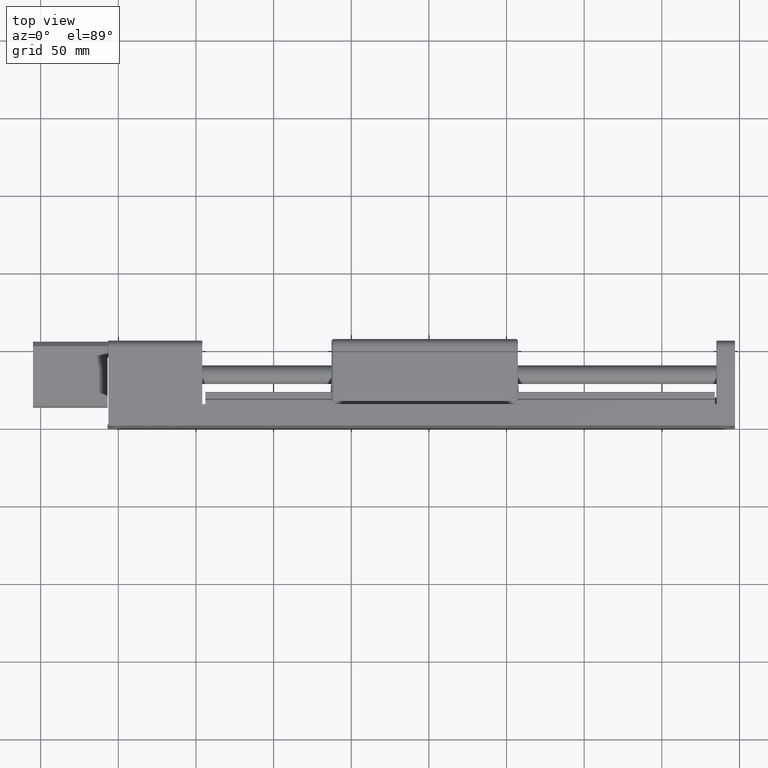
[diagram: clean part render]
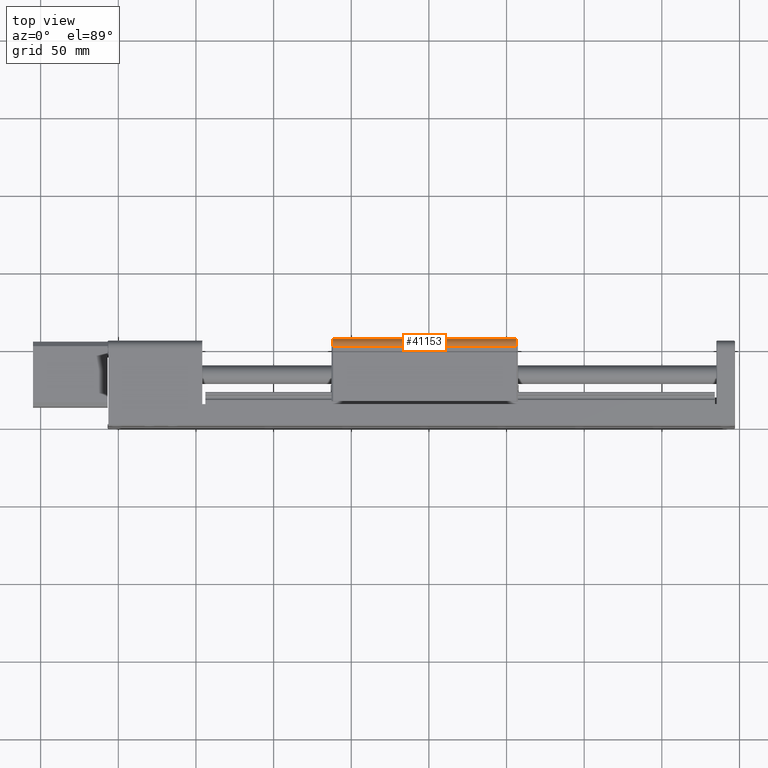
[diagram: same view with one face highlighted and labeled with its STEP entity id]
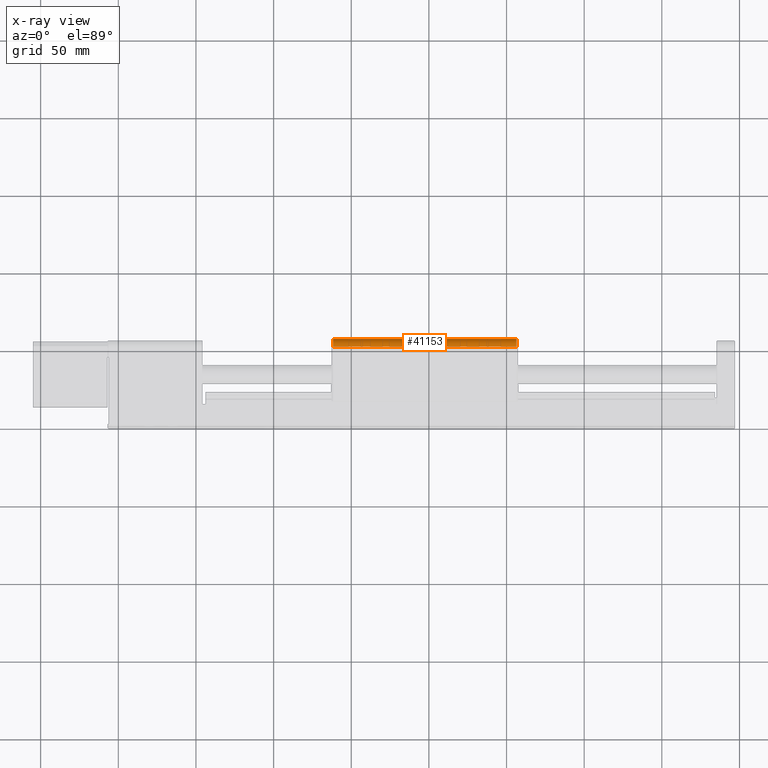
[diagram: x-ray of the same camera — body ghosted, the highlighted face saturated]
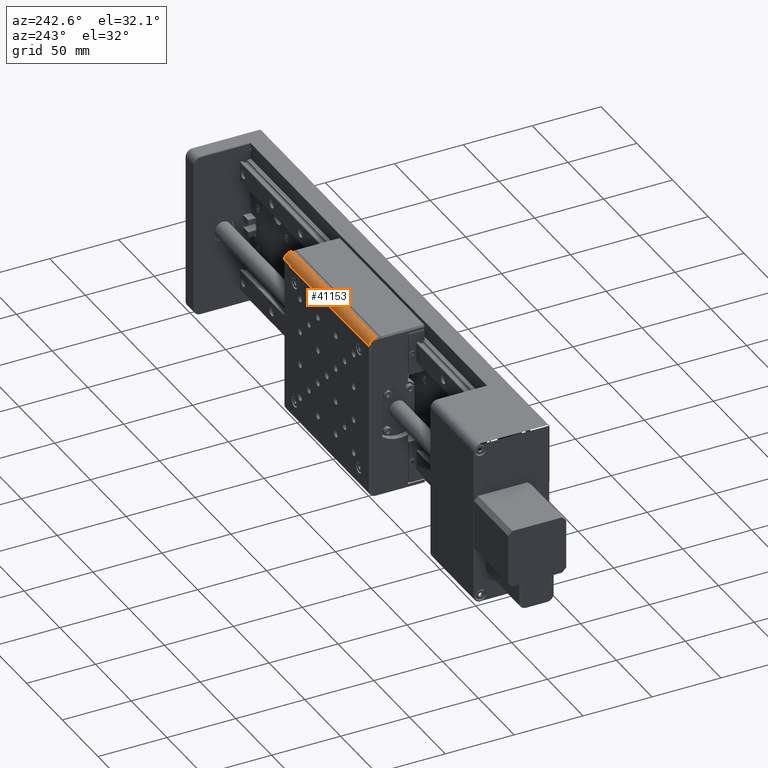
[diagram: same view with one face highlighted and labeled with its STEP entity id]
A machine part, top view. The second image highlights one B-rep face of the part: STEP entity #41153.
The next image is the same camera in x-ray: the body ghosted, the highlighted face saturated — about 0% of this face is hidden behind the body in this view.
A second angle (auxiliary view) of the same face is appended — the face is thin or edge-on in the first view.
In plain terms, the highlighted cylindrical surface (edge-blend (fillet) strip) has radius 5 mm, axis along (1, 0, 0).
Its self-contained STEP definition (entity closure, byte-faithful):
#443 = EDGE_CURVE ( 'NONE', #16487, #39385, #31915, .T. ) ;
#3041 = ORIENTED_EDGE ( 'NONE', *, *, #28893, .F. ) ;
#3510 = ORIENTED_EDGE ( 'NONE', *, *, #31813, .F. ) ;
#3668 = DIRECTION ( 'NONE',  ( -1.000000000000000000, -2.422518781573384600E-016, -1.080144557587899600E-014 ) ) ;
#4891 = CARTESIAN_POINT ( 'NONE',  ( 97.31380217570753600, 50.99999999999708000, -152.4944050297531000 ) ) ;
#6411 = DIRECTION ( 'NONE',  ( 0.0000000000000000000, 1.000000000000000000, 0.0000000000000000000 ) ) ;
#8962 = CARTESIAN_POINT ( 'NONE',  ( 38.31380217570747200, 50.99999999999706500, -147.4944050297537200 ) ) ;
#9585 = CARTESIAN_POINT ( 'NONE',  ( 97.31380217570753600, 55.99999999999708000, -152.4944050297531000 ) ) ;
#10675 = AXIS2_PLACEMENT_3D ( 'NONE', #23119, #3668, #6411 ) ;
#11138 = VECTOR ( 'NONE', #35907, 1000.000000000000000 ) ;
#11318 = DIRECTION ( 'NONE',  ( 1.000000000000000000, 2.422518781573384600E-016, 1.080144557587899600E-014 ) ) ;
#13036 = DIRECTION ( 'NONE',  ( 1.000000000000000000, 2.422518781573384600E-016, 1.080144557587899600E-014 ) ) ;
#13416 = CIRCLE ( 'NONE', #21097, 4.999999999999997300 ) ;
#15583 = VECTOR ( 'NONE', #30704, 1000.000000000000000 ) ;
#16487 = VERTEX_POINT ( 'NONE', #22759 ) ;
#16980 = CARTESIAN_POINT ( 'NONE',  ( 38.31380217570752900, 55.99999999999706500, -152.4944050297537200 ) ) ;
#18567 = ORIENTED_EDGE ( 'NONE', *, *, #25266, .T. ) ;
#21097 = AXIS2_PLACEMENT_3D ( 'NONE', #29231, #13036, #39306 ) ;
#21464 = DIRECTION ( 'NONE',  ( 0.0000000000000000000, -1.000000000000000000, 0.0000000000000000000 ) ) ;
#22759 = CARTESIAN_POINT ( 'NONE',  ( 156.3138021757075100, 50.99999999999709400, -147.4944050297524400 ) ) ;
#23119 = CARTESIAN_POINT ( 'NONE',  ( 156.3138021757075400, 50.99999999999709400, -152.4944050297524400 ) ) ;
#23709 = VERTEX_POINT ( 'NONE', #16980 ) ;
#25196 = VERTEX_POINT ( 'NONE', #8962 ) ;
#25266 = EDGE_CURVE ( 'NONE', #23709, #25196, #13416, .T. ) ;
#26385 = CARTESIAN_POINT ( 'NONE',  ( 157.3138021757075100, 50.99999999999709400, -147.4944050297524400 ) ) ;
#27508 = AXIS2_PLACEMENT_3D ( 'NONE', #4891, #11318, #21464 ) ;
#28188 = EDGE_LOOP ( 'NONE', ( #3510, #35359, #3041, #18567 ) ) ;
#28893 = EDGE_CURVE ( 'NONE', #23709, #39385, #32893, .T. ) ;
#29039 = LINE ( 'NONE', #26385, #15583 ) ;
#29231 = CARTESIAN_POINT ( 'NONE',  ( 38.31380217570752900, 50.99999999999706500, -152.4944050297537200 ) ) ;
#30704 = DIRECTION ( 'NONE',  ( -1.000000000000000000, -2.422518781573384600E-016, -1.080144557587899700E-014 ) ) ;
#31813 = EDGE_CURVE ( 'NONE', #16487, #25196, #29039, .T. ) ;
#31915 = CIRCLE ( 'NONE', #10675, 4.999999999999997300 ) ;
#31928 = CYLINDRICAL_SURFACE ( 'NONE', #27508, 4.999999999999997300 ) ;
#32893 = LINE ( 'NONE', #9585, #11138 ) ;
#35359 = ORIENTED_EDGE ( 'NONE', *, *, #443, .T. ) ;
#35907 = DIRECTION ( 'NONE',  ( 1.000000000000000000, 2.422518781573384600E-016, 1.080144557587899700E-014 ) ) ;
#36043 = FACE_OUTER_BOUND ( 'NONE', #28188, .T. ) ;
#39306 = DIRECTION ( 'NONE',  ( 0.0000000000000000000, -1.000000000000000000, 0.0000000000000000000 ) ) ;
#39385 = VERTEX_POINT ( 'NONE', #40844 ) ;
#40844 = CARTESIAN_POINT ( 'NONE',  ( 156.3138021757075400, 55.99999999999709400, -152.4944050297524400 ) ) ;
#41153 = ADVANCED_FACE ( 'NONE', ( #36043 ), #31928, .T. ) ;